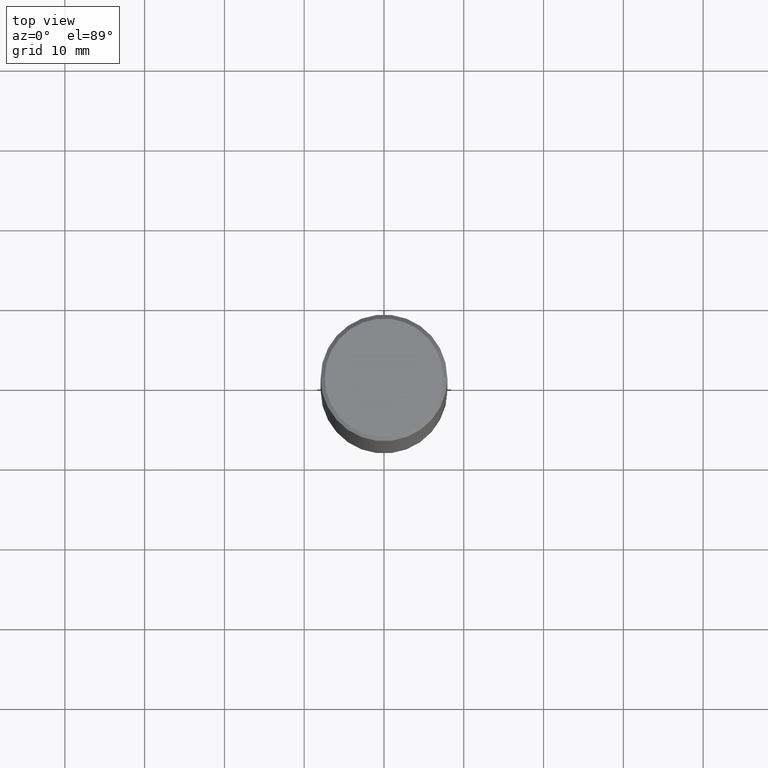
[diagram: clean part render]
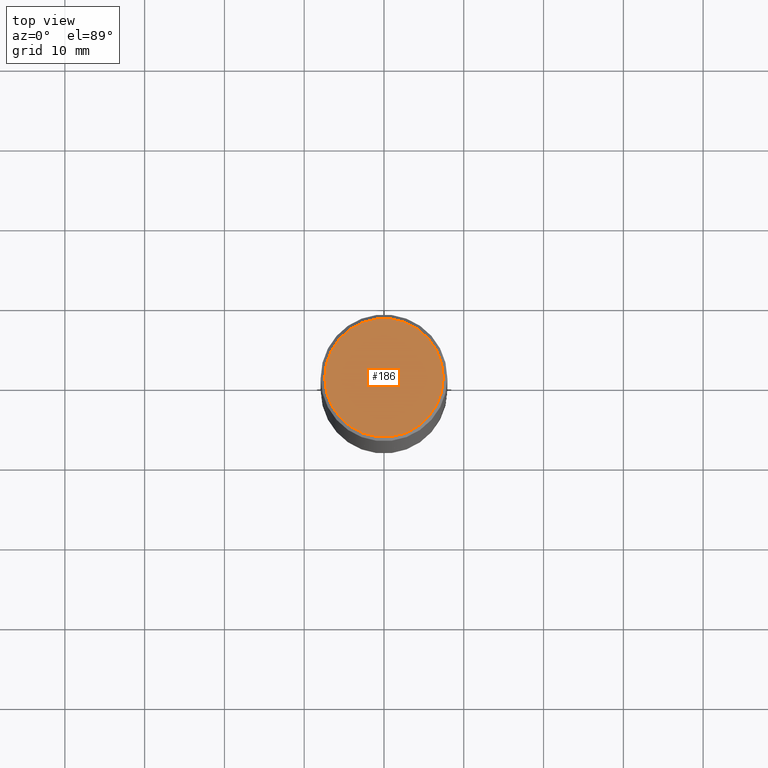
[diagram: same view with one face highlighted and labeled with its STEP entity id]
A machine part, top view. The second image highlights one B-rep face of the part: STEP entity #186.
In plain terms, the highlighted planar face has unit normal (0, -0, -1).
Its self-contained STEP definition (entity closure, byte-faithful):
#29 = DIRECTION ( 'NONE',  ( 2.438088387897960049E-29, -3.491481338843145188E-15, -1.000000000000000000 ) ) ;
#65 = CARTESIAN_POINT ( 'NONE',  ( 2.042516583223230567E-15, 0.2924999999999997047, -1.021258291611619228E-15 ) ) ;
#68 = FACE_OUTER_BOUND ( 'NONE', #103, .T. ) ;
#100 = VERTEX_POINT ( 'NONE', #257 ) ;
#101 = ORIENTED_EDGE ( 'NONE', *, *, #211, .T. ) ;
#103 = EDGE_LOOP ( 'NONE', ( #101, #279 ) ) ;
#109 = CARTESIAN_POINT ( 'NONE',  ( 0.2924999999999997047, -2.110215457714317959E-15, 1.452077414963940261E-29 ) ) ;
#121 = DIRECTION ( 'NONE',  ( -2.445468806185136597E-29, 3.491481338843145583E-15, 1.000000000000000000 ) ) ;
#126 = PLANE ( 'NONE',  #127 ) ;
#127 = AXIS2_PLACEMENT_3D ( 'NONE', #65, #29, #295 ) ;
#150 = DIRECTION ( 'NONE',  ( -2.445468806185136597E-29, 3.491481338843145583E-15, 1.000000000000000000 ) ) ;
#152 = DIRECTION ( 'NONE',  ( 1.000000000000000000, -6.982962677686266711E-15, 4.876176775795936353E-29 ) ) ;
#180 = CARTESIAN_POINT ( 'NONE',  ( 0.000000000000000000, 0.000000000000000000, 0.000000000000000000 ) ) ;
#184 = AXIS2_PLACEMENT_3D ( 'NONE', #180, #150, #342 ) ;
#186 = ADVANCED_FACE ( 'NONE', ( #68 ), #126, .F. ) ;
#211 = EDGE_CURVE ( 'NONE', #100, #351, #256, .T. ) ;
#215 = CARTESIAN_POINT ( 'NONE',  ( 0.000000000000000000, 0.000000000000000000, 0.000000000000000000 ) ) ;
#244 = EDGE_CURVE ( 'NONE', #351, #100, #275, .T. ) ;
#256 = CIRCLE ( 'NONE', #184, 0.2924999999999997047 ) ;
#257 = CARTESIAN_POINT ( 'NONE',  ( -0.2924999999999997047, 2.077431396611662216E-15, -1.440630921208798820E-29 ) ) ;
#275 = CIRCLE ( 'NONE', #328, 0.2924999999999997047 ) ;
#279 = ORIENTED_EDGE ( 'NONE', *, *, #244, .T. ) ;
#295 = DIRECTION ( 'NONE',  ( -1.000000000000000000, 6.982962677686265922E-15, -4.876176775795935793E-29 ) ) ;
#328 = AXIS2_PLACEMENT_3D ( 'NONE', #215, #121, #152 ) ;
#342 = DIRECTION ( 'NONE',  ( 1.000000000000000000, -6.982962677686266711E-15, 4.876176775795936353E-29 ) ) ;
#351 = VERTEX_POINT ( 'NONE', #109 ) ;